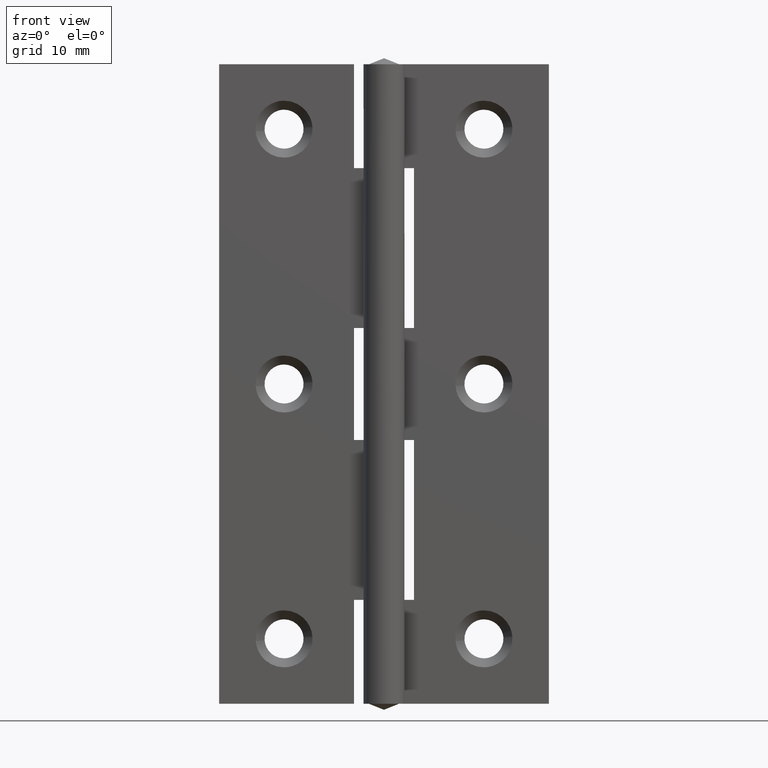
[diagram: clean part render]
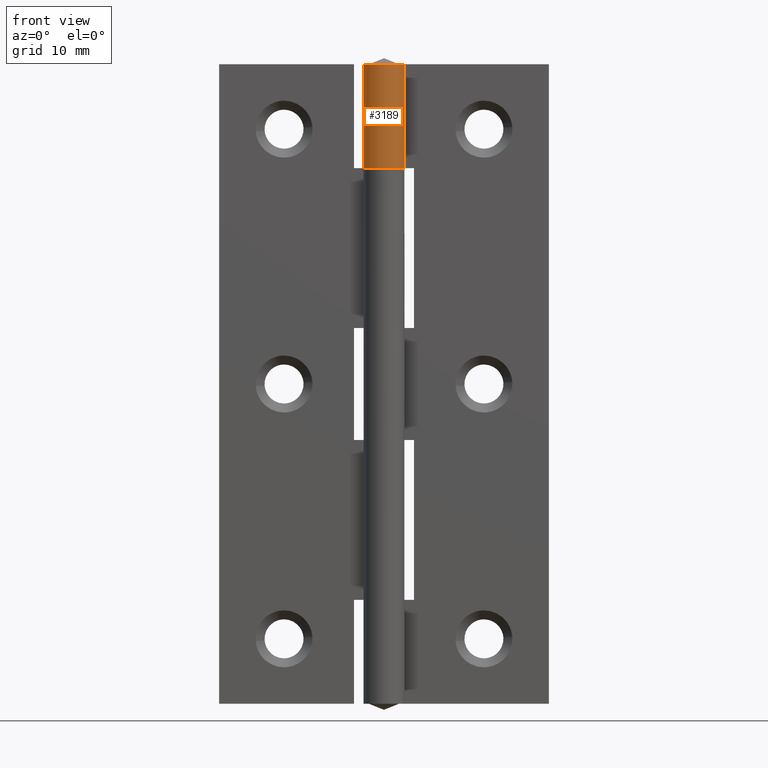
[diagram: same view with one face highlighted and labeled with its STEP entity id]
A machine part, front view. The second image highlights one B-rep face of the part: STEP entity #3189.
In plain terms, the highlighted face is a freeform B-spline surface patch.
Its self-contained STEP definition (entity closure, byte-faithful):
#2407=CARTESIAN_POINT('',(1.662078457834050,1.199998000000014,64.000007999999895));
#2408=VERTEX_POINT('',#2407);
#2409=CARTESIAN_POINT('',(1.662078457834050,1.199998000000014,53.599997999999900));
#2410=VERTEX_POINT('',#2409);
#2411=CARTESIAN_POINT('',(1.662078457834050,1.199998000000014,64.000007999999895));
#2412=CARTESIAN_POINT('',(1.662078457834050,1.199998000000014,53.599997999999900));
#2413=QUASI_UNIFORM_CURVE('',1,(#2411,#2412),.UNSPECIFIED.,.F.,.U.);
#2414=EDGE_CURVE('',#2408,#2410,#2413,.T.);
#2765=CARTESIAN_POINT('',(0.002863563502375,2.049998000000055,53.599997999999999));
#2766=VERTEX_POINT('',#2765);
#2767=CARTESIAN_POINT('',(0.002863563502375,2.049998000000055,53.599997999999999));
#2768=CARTESIAN_POINT('',(-0.253705829859866,2.050597461333152,53.599997999999992));
#2769=CARTESIAN_POINT('',(-0.681152773455604,1.969587420945551,53.599997999999822));
#2770=CARTESIAN_POINT('',(-1.248706240822872,1.660206191150699,53.599997999999957));
#2771=CARTESIAN_POINT('',(-1.607423700550406,1.304868268224775,53.599997999999928));
#2772=CARTESIAN_POINT('',(-1.839151046450788,0.926886527313733,53.599997999999772));
#2773=CARTESIAN_POINT('',(-1.994353222770115,0.542292615711100,53.599998000000312));
#2774=CARTESIAN_POINT('',(-2.069699050760712,0.088271345688079,53.599997999999637));
#2775=CARTESIAN_POINT('',(-2.027835637023880,-0.397687063188613,53.599997999999893));
#2776=CARTESIAN_POINT('',(-1.885916368582741,-0.848774492289826,53.599997999999893));
#2777=CARTESIAN_POINT('',(-1.659185580165121,-1.231996329817495,53.599997999999957));
#2778=CARTESIAN_POINT('',(-1.316489231090544,-1.597494036974188,53.599998000000262));
#2779=CARTESIAN_POINT('',(-0.918345053488131,-1.857079087054833,53.599997999998642));
#2780=CARTESIAN_POINT('',(-0.470569899240859,-2.009086860134106,53.599998000000440));
#2781=CARTESIAN_POINT('',(-0.058918278363887,-2.062633880697986,53.599997999999722));
#2782=CARTESIAN_POINT('',(0.312767109464383,-2.037006510375870,53.599998000000816));
#2783=CARTESIAN_POINT('',(0.700828983472790,-1.939531663643582,53.599997999995793));
#2784=CARTESIAN_POINT('',(1.078339459062218,-1.764695158865916,53.599998000008100));
#2785=CARTESIAN_POINT('',(1.417446228940504,-1.499717889073593,53.599997999991473));
#2786=CARTESIAN_POINT('',(1.668959676564965,-1.206742657977338,53.599998000009712));
#2787=CARTESIAN_POINT('',(1.875763860061548,-0.863847916004922,53.599997999993953));
#2788=CARTESIAN_POINT('',(2.021761244447300,-0.443193365810226,53.599998000001733));
#2789=CARTESIAN_POINT('',(2.073103942349417,0.099558580716773,53.599997999999268));
#2790=CARTESIAN_POINT('',(1.971515148012209,0.667584643209443,53.599998000000397));
#2791=CARTESIAN_POINT('',(1.778934431055386,1.038276778481059,53.599997999999381));
#2792=CARTESIAN_POINT('',(1.662078457834050,1.199998000000014,53.599997999999900));
#2793=B_SPLINE_CURVE_WITH_KNOTS('',3,(#2767,#2768,#2769,#2770,#2771,#2772,#2773,#2774,#2775,#2776,#2777,#2778,#2779,#2780,#2781,#2782,#2783,#2784,#2785,#2786,#2787,#2788,#2789,#2790,#2791,#2792),.UNSPECIFIED.,.F.,.U.,(4,1,1,1,1,1,1,1,1,1,1,1,1,1,1,1,1,1,1,1,1,1,1,4),(0.000000121327124,0.769597120099673,1.282660899495474,1.923995359432148,2.266064877210027,2.608085182633090,3.163869320440171,3.634194509435043,4.061763804591340,4.574845041594162,4.959652350810329,5.558194813729445,5.985733633454171,6.370540942673004,6.798110237828952,7.097405979664211,7.567710282578513,8.038036716226017,8.380042134522867,8.722080066692735,9.235168579937961,9.705483283640106,10.346820964383911,10.945385858609400),.UNSPECIFIED.);
#2794=EDGE_CURVE('',#2766,#2410,#2793,.T.);
#3022=CARTESIAN_POINT('',(0.002863563502375,2.049998000000000,64.000007999999895));
#3023=VERTEX_POINT('',#3022);
#3031=CARTESIAN_POINT('',(1.662078457834050,1.199998000000014,64.000007999999895));
#3032=CARTESIAN_POINT('',(1.762225679605891,1.061372857894088,64.000007999999866));
#3033=CARTESIAN_POINT('',(1.899918215506916,0.809266941640511,64.000007999999994));
#3034=CARTESIAN_POINT('',(2.015052342125208,0.425740999369884,64.000007999999795));
#3035=CARTESIAN_POINT('',(2.059556415805698,0.070979806602240,64.000007999999895));
#3036=CARTESIAN_POINT('',(2.040784890284897,-0.286392340465961,64.000007999999909));
#3037=CARTESIAN_POINT('',(1.952842240113758,-0.662390911374930,64.000007999999980));
#3038=CARTESIAN_POINT('',(1.813412383763775,-0.976752708837167,64.000007999999639));
#3039=CARTESIAN_POINT('',(1.616471797703529,-1.274487609444982,64.000008000000378));
#3040=CARTESIAN_POINT('',(1.326756816429511,-1.591486412319776,64.000008000000292));
#3041=CARTESIAN_POINT('',(0.940582292325996,-1.844388235123888,64.000007999998388));
#3042=CARTESIAN_POINT('',(0.482099909530776,-2.006444177679942,64.000008000001216));
#3043=CARTESIAN_POINT('',(0.041851787953922,-2.069360742746085,64.000007999999397));
#3044=CARTESIAN_POINT('',(-0.401283808925418,-2.025753475989139,64.000007999999994));
#3045=CARTESIAN_POINT('',(-0.810292790058207,-1.896234154435569,64.000007999999198));
#3046=CARTESIAN_POINT('',(-1.226622851249489,-1.672001802073192,64.000008000000207));
#3047=CARTESIAN_POINT('',(-1.594324382411380,-1.326000635438284,64.000007999999795));
#3048=CARTESIAN_POINT('',(-1.873718501262228,-0.875356997997747,64.000007999999823));
#3049=CARTESIAN_POINT('',(-2.016203310931235,-0.453498592924978,64.000008000000065));
#3050=CARTESIAN_POINT('',(-2.060367667163249,-0.040724313724280,64.000008000000037));
#3051=CARTESIAN_POINT('',(-2.031161857001671,0.372974249390461,64.000008000000022));
#3052=CARTESIAN_POINT('',(-1.924311109720232,0.745750873082694,64.000007999999895));
#3053=CARTESIAN_POINT('',(-1.727390923298209,1.126538509731673,64.000007999999724));
#3054=CARTESIAN_POINT('',(-1.461862483692006,1.465239715718792,64.000007999999838));
#3055=CARTESIAN_POINT('',(-1.043979190252736,1.793630137584711,64.000008000001557));
#3056=CARTESIAN_POINT('',(-0.538757077665372,2.004181606047320,64.000007999995134));
#3057=CARTESIAN_POINT('',(-0.168144473883999,2.050267467696618,64.000008000001728));
#3058=CARTESIAN_POINT('',(0.002863563502375,2.049998000000000,64.000007999999895));
#3059=B_SPLINE_CURVE_WITH_KNOTS('',3,(#3031,#3032,#3033,#3034,#3035,#3036,#3037,#3038,#3039,#3040,#3041,#3042,#3043,#3044,#3045,#3046,#3047,#3048,#3049,#3050,#3051,#3052,#3053,#3054,#3055,#3056,#3057,#3058),.UNSPECIFIED.,.F.,.U.,(4,1,1,1,1,1,1,1,1,1,1,1,1,1,1,1,1,1,1,1,1,1,1,1,1,4),(0.000000121313963,0.513040008207183,0.855096265807276,1.197148146563944,1.581956527810082,1.923995359421349,2.351572444765221,2.608085182623110,2.992851667568288,3.634194509426263,3.976249133857508,4.446563837557426,4.959652350803150,5.301690282984307,5.729198100807559,6.370540942667574,6.798110237824048,7.311191474827792,7.695998784045088,8.038036716222621,8.551050655533157,8.850368568158551,9.320672871078596,9.833752412900051,10.432345217286940,10.945385858609461),.UNSPECIFIED.);
#3060=EDGE_CURVE('',#2408,#3023,#3059,.T.);
#3157=CARTESIAN_POINT('',(0.020752834785245,2.049894953369166,64.260008249999913));
#3158=CARTESIAN_POINT('',(0.020752834785245,2.049894953369166,53.333497743749902));
#3159=CARTESIAN_POINT('',(-2.556318316284233,2.075984842385200,64.260008249999913));
#3160=CARTESIAN_POINT('',(-2.556318316284233,2.075984842385200,53.333497743749909));
#3161=CARTESIAN_POINT('',(-2.002024650582789,-0.440905090080399,64.260008249999913));
#3162=CARTESIAN_POINT('',(-2.002024650582789,-0.440905090080399,53.333497743749902));
#3163=CARTESIAN_POINT('',(-1.447730984881345,-2.957795022545997,64.260008249999913));
#3164=CARTESIAN_POINT('',(-1.447730984881345,-2.957795022545997,53.333497743749909));
#3165=CARTESIAN_POINT('',(0.879962277156801,-1.851530823610841,64.260008249999913));
#3166=CARTESIAN_POINT('',(0.879962277156801,-1.851530823610841,53.333497743749902));
#3167=CARTESIAN_POINT('',(3.207655539194946,-0.745266624675685,64.260008249999913));
#3168=CARTESIAN_POINT('',(3.207655539194946,-0.745266624675685,53.333497743749909));
#3169=CARTESIAN_POINT('',(1.606127766524322,1.273912711923245,64.260008249999913));
#3170=CARTESIAN_POINT('',(1.606127766524322,1.273912711923245,53.333497743749902));
#3178=(BOUNDED_SURFACE()B_SPLINE_SURFACE(1,2,((#3157,#3159,#3161,#3163,#3165,#3167,#3169),(#3158,#3160,#3162,#3164,#3166,#3168,#3170)),.UNSPECIFIED.,.F.,.F.,.U.)B_SPLINE_SURFACE_WITH_KNOTS((2,2),(3,2,2,3),(0.0,10.926510506250020),(0.0,3.955210474704076,7.910420949408152,11.865631424112230),.UNSPECIFIED.)GEOMETRIC_REPRESENTATION_ITEM()RATIONAL_B_SPLINE_SURFACE(((1.0,0.622514636637620,1.0,0.622514636637620,1.0,0.622514636637620,1.0),(1.0,0.622514636637620,1.0,0.622514636637620,1.0,0.622514636637620,1.0)))REPRESENTATION_ITEM('')SURFACE());
#3179=ORIENTED_EDGE('',*,*,#2794,.T.);
#3180=ORIENTED_EDGE('',*,*,#2414,.F.);
#3181=ORIENTED_EDGE('',*,*,#3060,.T.);
#3182=CARTESIAN_POINT('',(0.002863563502375,2.049998000000000,64.000007999999895));
#3183=CARTESIAN_POINT('',(0.002863563502375,2.049998000000055,53.599997999999999));
#3184=QUASI_UNIFORM_CURVE('',1,(#3182,#3183),.UNSPECIFIED.,.F.,.U.);
#3185=EDGE_CURVE('',#3023,#2766,#3184,.T.);
#3186=ORIENTED_EDGE('',*,*,#3185,.T.);
#3187=EDGE_LOOP('',(#3179,#3180,#3181,#3186));
#3188=FACE_OUTER_BOUND('',#3187,.T.);
#3189=ADVANCED_FACE('',(#3188),#3178,.T.);